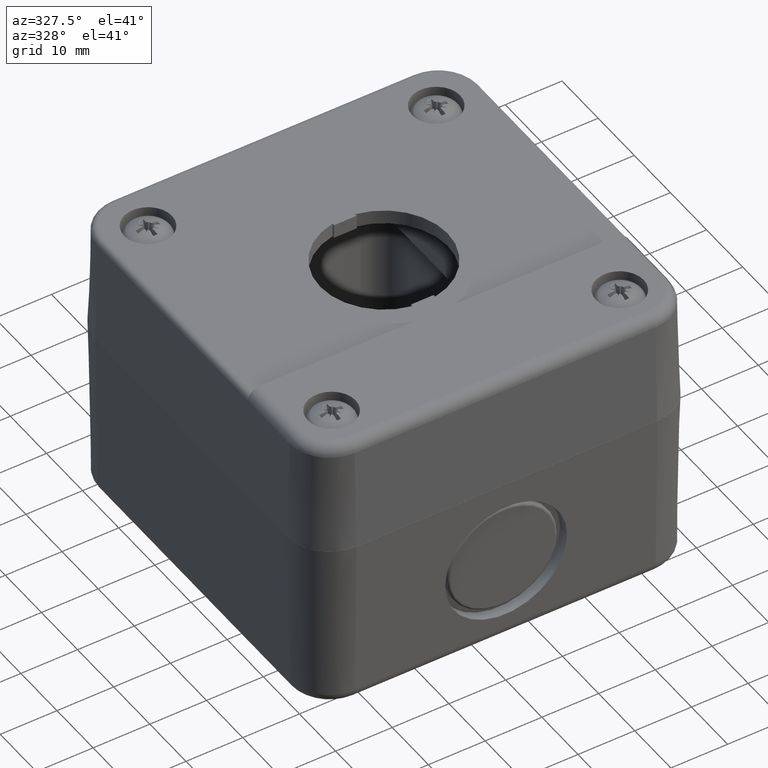
[diagram: clean part render]
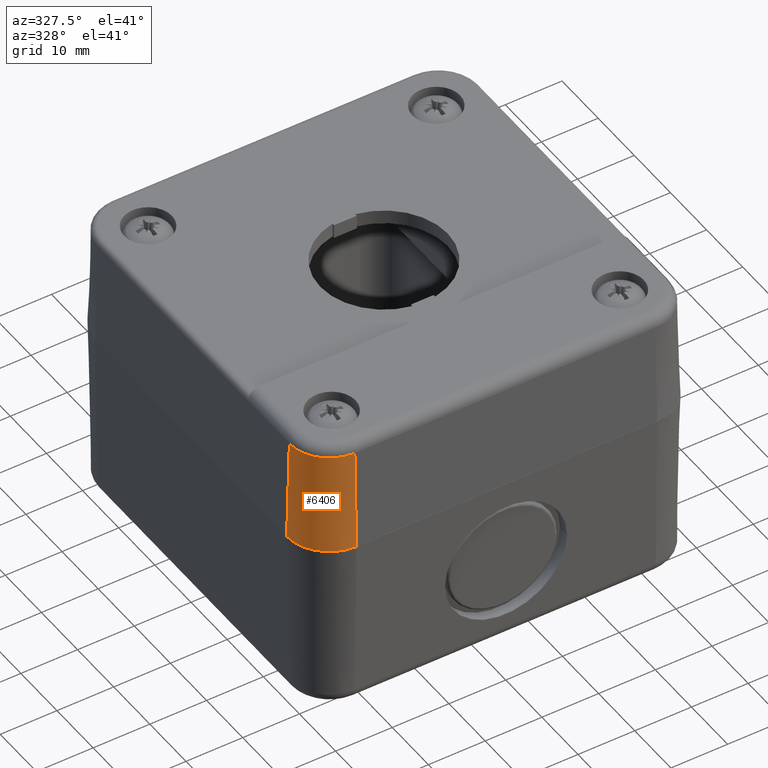
[diagram: same view with one face highlighted and labeled with its STEP entity id]
A machine part, auxiliary view. The second image highlights one B-rep face of the part: STEP entity #6406.
In plain terms, the highlighted conical surface has half-angle 1.5 deg.
Its self-contained STEP definition (entity closure, byte-faithful):
#6059=CARTESIAN_POINT('',(-34.484606492162904,24.285100308944429,1.947646103384255));
#6060=VERTEX_POINT('',#6059);
#6260=CARTESIAN_POINT('',(-27.433605584055144,31.336101217052178,1.947646103384254));
#6261=VERTEX_POINT('',#6260);
#6291=CARTESIAN_POINT('',(-27.433605584055144,24.285100308944429,1.947646103384255));
#6292=DIRECTION('',(0.0,0.0,-1.000000000000000));
#6293=DIRECTION('',(-0.707106781186548,0.707106781186548,0.0));
#6294=AXIS2_PLACEMENT_3D('',#6291,#6292,#6293);
#6295=CIRCLE('',#6294,7.051000908107762);
#6296=EDGE_CURVE('',#6060,#6261,#6295,.T.);
#6364=CARTESIAN_POINT('',(-27.433605584055144,31.808818740328164,20.0));
#6365=VERTEX_POINT('',#6364);
#6366=CARTESIAN_POINT('',(-27.433605584055144,31.336101217052178,1.947646103384254));
#6367=DIRECTION('',(0.0,0.026176948307873,0.999657324975557));
#6368=VECTOR('',#6367,18.058542107973995);
#6369=LINE('',#6366,#6368);
#6370=EDGE_CURVE('',#6261,#6365,#6369,.T.);
#6382=CARTESIAN_POINT('',(-27.433605584055144,24.285100308944429,0.0));
#6383=DIRECTION('',(0.0,0.0,1.0));
#6384=DIRECTION('',(0.0,-1.0,0.0));
#6385=AXIS2_PLACEMENT_3D('',#6382,#6383,#6384);
#6386=CONICAL_SURFACE('',#6385,7.000000000000011,1.500000000000000);
#6387=ORIENTED_EDGE('',*,*,#6296,.F.);
#6388=CARTESIAN_POINT('',(-34.957324015438893,24.285100308944429,20.0));
#6389=VERTEX_POINT('',#6388);
#6390=CARTESIAN_POINT('',(-34.484606492162904,24.285100308944429,1.947646103384255));
#6391=DIRECTION('',(-0.026176948307873,0.0,0.999657324975557));
#6392=VECTOR('',#6391,18.058542107973995);
#6393=LINE('',#6390,#6392);
#6394=EDGE_CURVE('',#6060,#6389,#6393,.T.);
#6395=ORIENTED_EDGE('',*,*,#6394,.T.);
#6396=CARTESIAN_POINT('',(-27.433605584055144,24.285100308944429,20.0));
#6397=DIRECTION('',(0.0,0.0,-1.0));
#6398=DIRECTION('',(0.0,-1.0,0.0));
#6399=AXIS2_PLACEMENT_3D('',#6396,#6397,#6398);
#6400=CIRCLE('',#6399,7.523718431383751);
#6401=EDGE_CURVE('',#6389,#6365,#6400,.T.);
#6402=ORIENTED_EDGE('',*,*,#6401,.T.);
#6403=ORIENTED_EDGE('',*,*,#6370,.F.);
#6404=EDGE_LOOP('',(#6387,#6395,#6402,#6403));
#6405=FACE_OUTER_BOUND('',#6404,.T.);
#6406=ADVANCED_FACE('',(#6405),#6386,.T.);